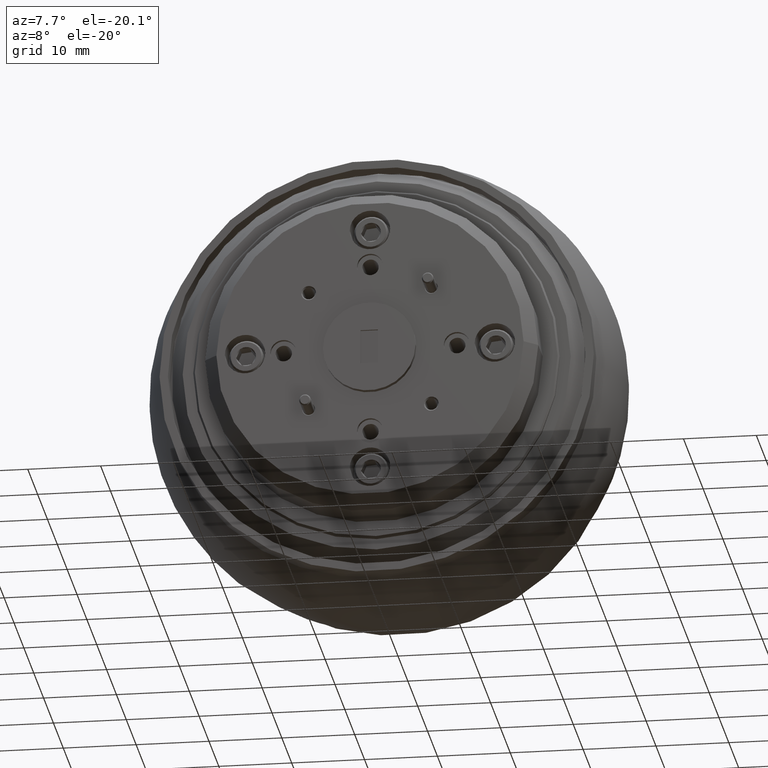
[diagram: clean part render]
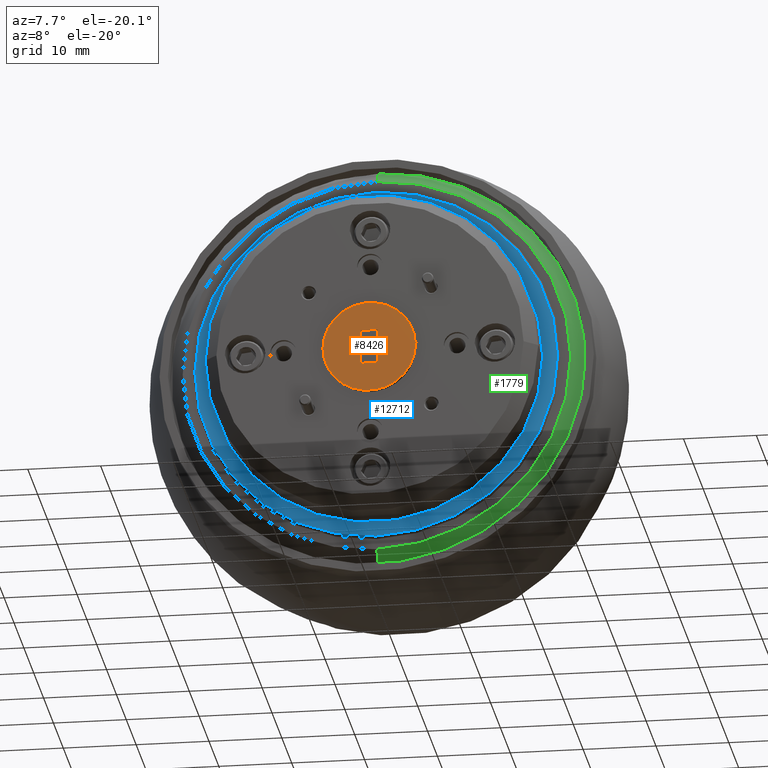
[diagram: same view with three faces highlighted in distinct colors, each labeled with its STEP entity id]
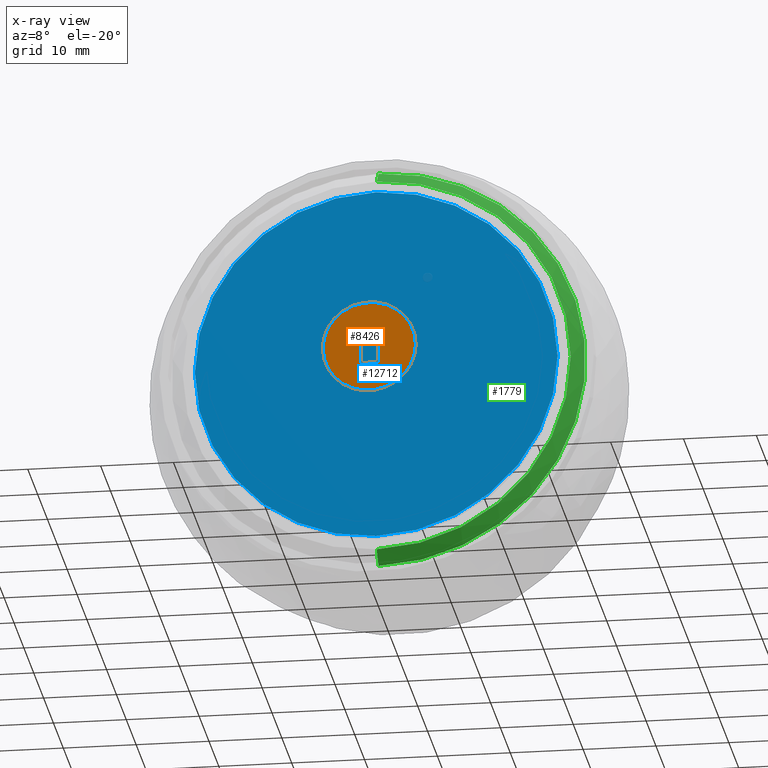
[diagram: x-ray of the same camera — body ghosted, the three highlighted faces saturated]
A machine part, auxiliary view with three faces highlighted in distinct colors.
The next image is the same camera in x-ray (body ghosted, the three faces saturated) — at least one of them is partly hidden behind the body in this view.
Their STEP definitions:

[orange] entity #8426 — the highlighted planar face has unit normal (0, -1, 0).
#270 = AXIS2_PLACEMENT_3D ( 'NONE', #14233, #655, #11895 ) ;
#647 = AXIS2_PLACEMENT_3D ( 'NONE', #8088, #14286, #2059 ) ;
#655 = DIRECTION ( 'NONE',  ( 0.0000000000000000000, -1.000000000000000000, 0.0000000000000000000 ) ) ;
#737 = DIRECTION ( 'NONE',  ( 5.551115123125782700E-017, 0.0000000000000000000, 1.000000000000000000 ) ) ;
#1182 = FACE_OUTER_BOUND ( 'NONE', #2463, .T. ) ;
#2059 = DIRECTION ( 'NONE',  ( 1.000000000000000000, 0.0000000000000000000, -5.551115123125778400E-017 ) ) ;
#2090 = DIRECTION ( 'NONE',  ( 1.000000000000000000, 0.0000000000000000000, -5.551115123125782700E-017 ) ) ;
#2095 = LINE ( 'NONE', #15558, #11177 ) ;
#2203 = ORIENTED_EDGE ( 'NONE', *, *, #4102, .T. ) ;
#2463 = EDGE_LOOP ( 'NONE', ( #3943, #15758 ) ) ;
#2740 = EDGE_LOOP ( 'NONE', ( #4781, #3266, #2203, #10744 ) ) ;
#3254 = EDGE_CURVE ( 'NONE', #8886, #4612, #5560, .T. ) ;
#3266 = ORIENTED_EDGE ( 'NONE', *, *, #12198, .T. ) ;
#3585 = LINE ( 'NONE', #12224, #6325 ) ;
#3943 = ORIENTED_EDGE ( 'NONE', *, *, #11467, .T. ) ;
#4062 = VERTEX_POINT ( 'NONE', #11033 ) ;
#4102 = EDGE_CURVE ( 'NONE', #4062, #13146, #3585, .T. ) ;
#4165 = DIRECTION ( 'NONE',  ( 0.0000000000000000000, -1.000000000000000000, 0.0000000000000000000 ) ) ;
#4612 = VERTEX_POINT ( 'NONE', #16054 ) ;
#4781 = ORIENTED_EDGE ( 'NONE', *, *, #6415, .T. ) ;
#5374 = EDGE_CURVE ( 'NONE', #13146, #6191, #8482, .T. ) ;
#5488 = CARTESIAN_POINT ( 'NONE',  ( 4.996003610813203900E-017, -0.7559999999999995600, 0.9000000000000002400 ) ) ;
#5560 = CIRCLE ( 'NONE', #647, 0.2500000000000000000 ) ;
#6096 = CARTESIAN_POINT ( 'NONE',  ( 0.04700000000000000700, -0.7559999999999995600, 0.09400000000000026400 ) ) ;
#6191 = VERTEX_POINT ( 'NONE', #6344 ) ;
#6260 = DIRECTION ( 'NONE',  ( -1.000000000000000000, 0.0000000000000000000, 5.551115123125782700E-017 ) ) ;
#6325 = VECTOR ( 'NONE', #6260, 39.37007874015748100 ) ;
#6344 = CARTESIAN_POINT ( 'NONE',  ( -0.04699999999999998600, -0.7559999999999995600, 0.09400000000000029200 ) ) ;
#6415 = EDGE_CURVE ( 'NONE', #6191, #7292, #2095, .T. ) ;
#7292 = VERTEX_POINT ( 'NONE', #10867 ) ;
#7525 = LINE ( 'NONE', #6096, #7704 ) ;
#7704 = VECTOR ( 'NONE', #11047, 39.37007874015748100 ) ;
#8012 = PLANE ( 'NONE',  #13083 ) ;
#8088 = CARTESIAN_POINT ( 'NONE',  ( 0.0000000000000000000, -0.7559999999999995600, 2.731847993664263200E-016 ) ) ;
#8426 = ADVANCED_FACE ( 'NONE', ( #12627, #1182 ), #8012, .T. ) ;
#8482 = LINE ( 'NONE', #8697, #13737 ) ;
#8697 = CARTESIAN_POINT ( 'NONE',  ( -0.04700000000000000700, -0.7559999999999995600, -0.09399999999999972300 ) ) ;
#8886 = VERTEX_POINT ( 'NONE', #13880 ) ;
#10744 = ORIENTED_EDGE ( 'NONE', *, *, #5374, .T. ) ;
#10867 = CARTESIAN_POINT ( 'NONE',  ( 0.04700000000000000700, -0.7559999999999995600, 0.09400000000000026400 ) ) ;
#11033 = CARTESIAN_POINT ( 'NONE',  ( 0.04699999999999998600, -0.7559999999999995600, -0.09399999999999959800 ) ) ;
#11047 = DIRECTION ( 'NONE',  ( -5.551115123125782700E-017, 0.0000000000000000000, -1.000000000000000000 ) ) ;
#11177 = VECTOR ( 'NONE', #2090, 39.37007874015748100 ) ;
#11467 = EDGE_CURVE ( 'NONE', #4612, #8886, #15128, .T. ) ;
#11616 = DIRECTION ( 'NONE',  ( 1.000000000000000000, 0.0000000000000000000, -5.551115123125782700E-017 ) ) ;
#11895 = DIRECTION ( 'NONE',  ( 1.000000000000000000, 0.0000000000000000000, -5.551115123125778400E-017 ) ) ;
#12198 = EDGE_CURVE ( 'NONE', #7292, #4062, #7525, .T. ) ;
#12224 = CARTESIAN_POINT ( 'NONE',  ( 0.04699999999999998600, -0.7559999999999995600, -0.09399999999999972300 ) ) ;
#12627 = FACE_BOUND ( 'NONE', #2740, .T. ) ;
#13083 = AXIS2_PLACEMENT_3D ( 'NONE', #5488, #4165, #11616 ) ;
#13146 = VERTEX_POINT ( 'NONE', #13230 ) ;
#13230 = CARTESIAN_POINT ( 'NONE',  ( -0.04700000000000000700, -0.7559999999999995600, -0.09399999999999972300 ) ) ;
#13737 = VECTOR ( 'NONE', #737, 39.37007874015748100 ) ;
#13880 = CARTESIAN_POINT ( 'NONE',  ( -0.2500000000000000000, -0.7559999999999995600, 3.176787571529246100E-016 ) ) ;
#14233 = CARTESIAN_POINT ( 'NONE',  ( 0.0000000000000000000, -0.7559999999999995600, 2.731847993664263200E-016 ) ) ;
#14286 = DIRECTION ( 'NONE',  ( 0.0000000000000000000, -1.000000000000000000, 0.0000000000000000000 ) ) ;
#15128 = CIRCLE ( 'NONE', #270, 0.2500000000000000000 ) ;
#15558 = CARTESIAN_POINT ( 'NONE',  ( -0.04699999999999998600, -0.7559999999999995600, 0.09400000000000026400 ) ) ;
#15758 = ORIENTED_EDGE ( 'NONE', *, *, #3254, .T. ) ;
#16054 = CARTESIAN_POINT ( 'NONE',  ( 0.2500000000000000000, -0.7559999999999995600, 2.593070115586118700E-016 ) ) ;

[blue] entity #12712 — the highlighted planar face has unit normal (0, -1, 0).
#1054 = DIRECTION ( 'NONE',  ( 0.0000000000000000000, 0.0000000000000000000, -1.000000000000000000 ) ) ;
#2419 = CARTESIAN_POINT ( 'NONE',  ( 0.0000000000000000000, -0.4769999999999995900, 0.0000000000000000000 ) ) ;
#3026 = EDGE_CURVE ( 'NONE', #15279, #6035, #8223, .T. ) ;
#3526 = ORIENTED_EDGE ( 'NONE', *, *, #3026, .T. ) ;
#4448 = EDGE_LOOP ( 'NONE', ( #3526, #5320 ) ) ;
#4953 = DIRECTION ( 'NONE',  ( 0.0000000000000000000, 0.0000000000000000000, -1.000000000000000000 ) ) ;
#5320 = ORIENTED_EDGE ( 'NONE', *, *, #9878, .T. ) ;
#6035 = VERTEX_POINT ( 'NONE', #13506 ) ;
#6128 = CARTESIAN_POINT ( 'NONE',  ( 0.0000000000000000000, -0.4769999999999995900, 0.0000000000000000000 ) ) ;
#7979 = CARTESIAN_POINT ( 'NONE',  ( 0.0000000000000000000, -0.4769999999999995900, 0.0000000000000000000 ) ) ;
#8223 = CIRCLE ( 'NONE', #10896, 0.9799999999999999800 ) ;
#9878 = EDGE_CURVE ( 'NONE', #6035, #15279, #11606, .T. ) ;
#10896 = AXIS2_PLACEMENT_3D ( 'NONE', #6128, #16058, #4953 ) ;
#11606 = CIRCLE ( 'NONE', #11643, 0.9799999999999999800 ) ;
#11643 = AXIS2_PLACEMENT_3D ( 'NONE', #2419, #14654, #1054 ) ;
#11944 = FACE_OUTER_BOUND ( 'NONE', #4448, .T. ) ;
#12712 = ADVANCED_FACE ( 'NONE', ( #11944 ), #12972, .T. ) ;
#12769 = DIRECTION ( 'NONE',  ( 0.0000000000000000000, -0.0000000000000000000, -1.000000000000000000 ) ) ;
#12972 = PLANE ( 'NONE',  #13129 ) ;
#13129 = AXIS2_PLACEMENT_3D ( 'NONE', #7979, #14025, #12769 ) ;
#13506 = CARTESIAN_POINT ( 'NONE',  ( 1.206277097160142800E-016, -0.4769999999999995900, -0.9799999999999999800 ) ) ;
#14025 = DIRECTION ( 'NONE',  ( 0.0000000000000000000, -1.000000000000000000, 0.0000000000000000000 ) ) ;
#14654 = DIRECTION ( 'NONE',  ( 0.0000000000000000000, -1.000000000000000000, 0.0000000000000000000 ) ) ;
#14829 = CARTESIAN_POINT ( 'NONE',  ( 0.0000000000000000000, -0.4769999999999995900, 0.9799999999999999800 ) ) ;
#15279 = VERTEX_POINT ( 'NONE', #14829 ) ;
#16058 = DIRECTION ( 'NONE',  ( 0.0000000000000000000, -1.000000000000000000, 0.0000000000000000000 ) ) ;

[green] entity #1779 — the highlighted conical surface has half-angle 45 deg.
#962 = VERTEX_POINT ( 'NONE', #9756 ) ;
#1309 = DIRECTION ( 'NONE',  ( 0.0000000000000000000, 1.000000000000000000, 0.0000000000000000000 ) ) ;
#1779 = ADVANCED_FACE ( 'NONE', ( #12553 ), #10428, .T. ) ;
#1874 = AXIS2_PLACEMENT_3D ( 'NONE', #7617, #10114, #2810 ) ;
#2141 = DIRECTION ( 'NONE',  ( 0.0000000000000000000, 0.0000000000000000000, 1.000000000000000000 ) ) ;
#2434 = CARTESIAN_POINT ( 'NONE',  ( 0.0000000000000000000, -0.4559999999999995700, 1.048640772573399500 ) ) ;
#2534 = CARTESIAN_POINT ( 'NONE',  ( 0.0000000000000000000, -0.4559999999999995700, 1.048640772573399500 ) ) ;
#2810 = DIRECTION ( 'NONE',  ( 0.0000000000000000000, 0.0000000000000000000, 1.000000000000000000 ) ) ;
#2830 = DIRECTION ( 'NONE',  ( 8.659560562354899600E-017, 0.7071067811865502400, -0.7071067811865446900 ) ) ;
#3077 = VECTOR ( 'NONE', #15744, 39.37007874015748900 ) ;
#3095 = CARTESIAN_POINT ( 'NONE',  ( 0.0000000000000000000, -0.3859999999999984000, -1.118640772573400200 ) ) ;
#3213 = CARTESIAN_POINT ( 'NONE',  ( 0.0000000000000000000, -0.4559999999999995700, 0.0000000000000000000 ) ) ;
#3527 = CIRCLE ( 'NONE', #1874, 1.048640772573399500 ) ;
#3636 = ORIENTED_EDGE ( 'NONE', *, *, #11685, .F. ) ;
#3702 = ORIENTED_EDGE ( 'NONE', *, *, #8199, .F. ) ;
#5028 = VERTEX_POINT ( 'NONE', #2534 ) ;
#6767 = LINE ( 'NONE', #2434, #3077 ) ;
#7400 = DIRECTION ( 'NONE',  ( 0.0000000000000000000, 0.0000000000000000000, 1.000000000000000000 ) ) ;
#7617 = CARTESIAN_POINT ( 'NONE',  ( 0.0000000000000000000, -0.4559999999999995700, 0.0000000000000000000 ) ) ;
#7845 = VECTOR ( 'NONE', #2830, 39.37007874015748900 ) ;
#7944 = CIRCLE ( 'NONE', #13393, 1.118640772573400200 ) ;
#8199 = EDGE_CURVE ( 'NONE', #962, #5028, #3527, .T. ) ;
#8752 = EDGE_CURVE ( 'NONE', #9469, #11447, #7944, .T. ) ;
#9324 = ORIENTED_EDGE ( 'NONE', *, *, #13981, .T. ) ;
#9469 = VERTEX_POINT ( 'NONE', #12771 ) ;
#9601 = LINE ( 'NONE', #11372, #7845 ) ;
#9756 = CARTESIAN_POINT ( 'NONE',  ( 1.327077203557579100E-016, -0.4559999999999995700, -1.048640772573399500 ) ) ;
#9963 = AXIS2_PLACEMENT_3D ( 'NONE', #3213, #14365, #2141 ) ;
#10114 = DIRECTION ( 'NONE',  ( 0.0000000000000000000, -1.000000000000000000, 0.0000000000000000000 ) ) ;
#10428 = CONICAL_SURFACE ( 'NONE', #9963, 1.048640772573399500, 0.7853981633974445000 ) ;
#11372 = CARTESIAN_POINT ( 'NONE',  ( 1.284214565587421500E-016, -0.4559999999999995700, -1.048640772573399500 ) ) ;
#11447 = VERTEX_POINT ( 'NONE', #3095 ) ;
#11685 = EDGE_CURVE ( 'NONE', #5028, #9469, #6767, .T. ) ;
#12553 = FACE_OUTER_BOUND ( 'NONE', #13919, .T. ) ;
#12771 = CARTESIAN_POINT ( 'NONE',  ( 1.369939841527736700E-016, -0.3859999999999984000, 1.118640772573400200 ) ) ;
#13393 = AXIS2_PLACEMENT_3D ( 'NONE', #14812, #1309, #7400 ) ;
#13919 = EDGE_LOOP ( 'NONE', ( #3702, #9324, #14901, #3636 ) ) ;
#13981 = EDGE_CURVE ( 'NONE', #962, #11447, #9601, .T. ) ;
#14365 = DIRECTION ( 'NONE',  ( 0.0000000000000000000, 1.000000000000000000, 0.0000000000000000000 ) ) ;
#14812 = CARTESIAN_POINT ( 'NONE',  ( 0.0000000000000000000, -0.3859999999999984000, 0.0000000000000000000 ) ) ;
#14901 = ORIENTED_EDGE ( 'NONE', *, *, #8752, .F. ) ;
#15744 = DIRECTION ( 'NONE',  ( 0.0000000000000000000, 0.7071067811865502400, 0.7071067811865446900 ) ) ;